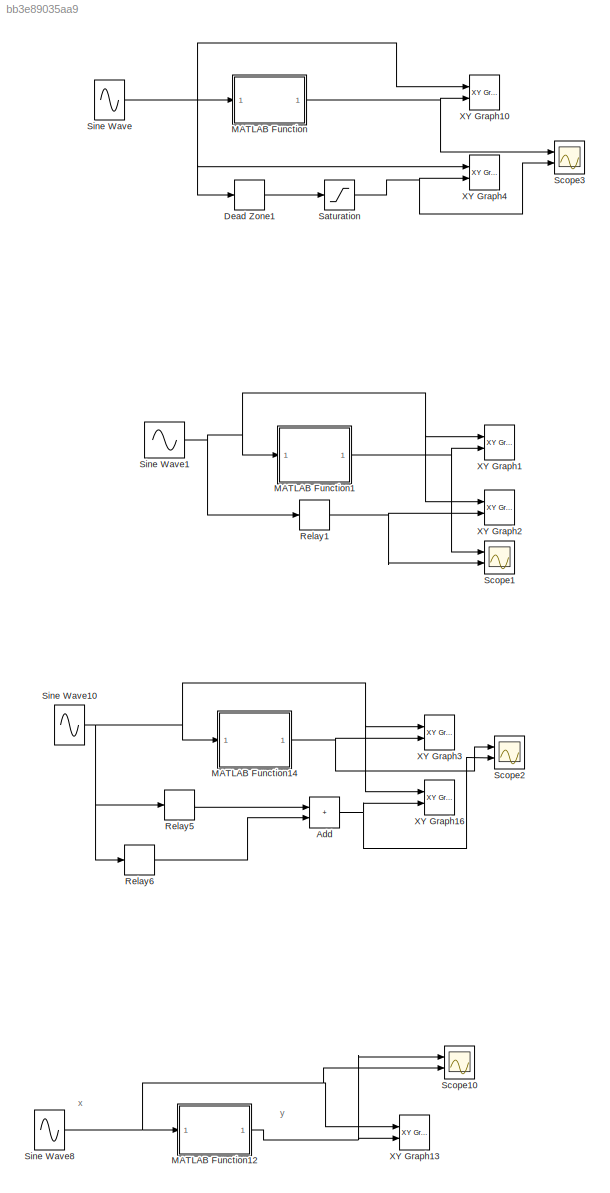
MODEL slx_bb3e89035aa9
KIND model
CONFIG AbsTol = auto
CONFIG EnableMultiTasking = off
CONFIG FixedStep = 0.001
CONFIG MaxStep = auto
CONFIG MinStep = auto
CONFIG RelTol = 1e-3
CONFIG SampleTimeConstraint = Unconstrained
CONFIG SolverName = FixedStepAuto
CONFIG StartTime = 0.0
CONFIG StopTime = 10.0
BLOCK [Sum] Add
  Commented = on
  IconShape = rectangular
  Ports = [2, 1]
BLOCK [DeadZone] Dead Zone1
  Commented = on
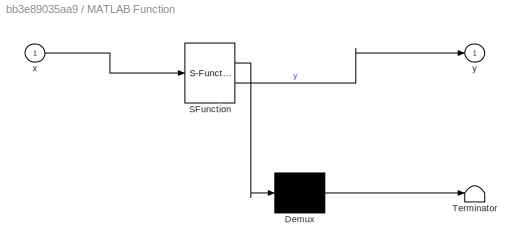
BLOCK [SubSystem] MATLAB Function
  Commented = on
  ErrorFcn = Stateflow.Translate.translate
  PermitHierarchicalResolution = ExplicitOnly
  Ports = [1, 1]
  RequestExecContextInheritance = off
  SFBlockType = MATLAB Function
  TreatAsAtomicUnit = on
BLOCK [Demux] MATLAB Function/ Demux 
  Outputs = 1
  Ports = [1, 1]
BLOCK [S-Function] MATLAB Function/ SFunction 
  EnableBusSupport = on
  FunctionName = sf_sfun
  PortCounts = [1 2]
  Ports = [1, 2]
  SFcnIsStateOwnerBlock = off
  SFunctionDeploymentMode = off
  Tag = Stateflow S-Function 3
BLOCK [Terminator] MATLAB Function/ Terminator 
BLOCK [Inport] MATLAB Function/x
BLOCK [Outport] MATLAB Function/y
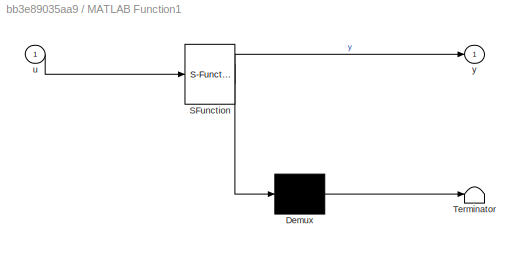
BLOCK [SubSystem] MATLAB Function1
  Commented = on
  ErrorFcn = Stateflow.Translate.translate
  PermitHierarchicalResolution = ExplicitOnly
  Ports = [1, 1]
  RequestExecContextInheritance = off
  SFBlockType = MATLAB Function
  TreatAsAtomicUnit = on
BLOCK [Demux] MATLAB Function1/ Demux 
  Outputs = 1
  Ports = [1, 1]
BLOCK [S-Function] MATLAB Function1/ SFunction 
  EnableBusSupport = on
  FunctionName = sf_sfun
  PortCounts = [1 2]
  Ports = [1, 2]
  SFcnIsStateOwnerBlock = off
  SFunctionDeploymentMode = off
  Tag = Stateflow S-Function 1
BLOCK [Terminator] MATLAB Function1/ Terminator 
BLOCK [Inport] MATLAB Function1/u
BLOCK [Outport] MATLAB Function1/y
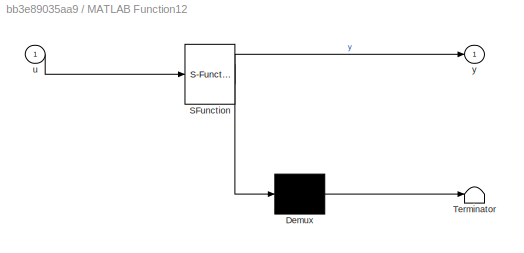
BLOCK [SubSystem] MATLAB Function12
  ErrorFcn = Stateflow.Translate.translate
  PermitHierarchicalResolution = ExplicitOnly
  Ports = [1, 1]
  RequestExecContextInheritance = off
  SFBlockType = MATLAB Function
  TreatAsAtomicUnit = on
BLOCK [Demux] MATLAB Function12/ Demux 
  Outputs = 1
  Ports = [1, 1]
BLOCK [S-Function] MATLAB Function12/ SFunction 
  EnableBusSupport = on
  FunctionName = sf_sfun
  PortCounts = [1 2]
  Ports = [1, 2]
  SFcnIsStateOwnerBlock = off
  SFunctionDeploymentMode = off
  Tag = Stateflow S-Function 13
BLOCK [Terminator] MATLAB Function12/ Terminator 
BLOCK [Inport] MATLAB Function12/u
BLOCK [Outport] MATLAB Function12/y
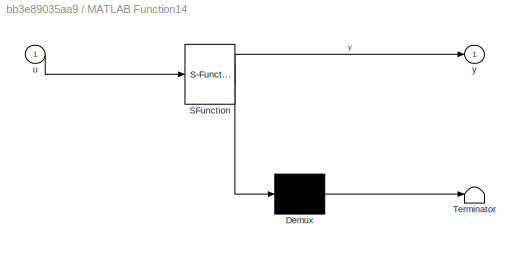
BLOCK [SubSystem] MATLAB Function14
  Commented = on
  ErrorFcn = Stateflow.Translate.translate
  PermitHierarchicalResolution = ExplicitOnly
  Ports = [1, 1]
  RequestExecContextInheritance = off
  SFBlockType = MATLAB Function
  TreatAsAtomicUnit = on
BLOCK [Demux] MATLAB Function14/ Demux 
  Outputs = 1
  Ports = [1, 1]
BLOCK [S-Function] MATLAB Function14/ SFunction 
  EnableBusSupport = on
  FunctionName = sf_sfun
  PortCounts = [1 2]
  Ports = [1, 2]
  SFcnIsStateOwnerBlock = off
  SFunctionDeploymentMode = off
  Tag = Stateflow S-Function 2
BLOCK [Terminator] MATLAB Function14/ Terminator 
BLOCK [Inport] MATLAB Function14/u
BLOCK [Outport] MATLAB Function14/y
BLOCK [Relay] Relay1
  Commented = on
  OffOutputValue = -2
  OffSwitchValue = -0.6
  OnOutputValue = 2
  OnSwitchValue = 0.6
BLOCK [Relay] Relay5
  Commented = on
  OffOutputValue = -3
  OffSwitchValue = 1
  OnOutputValue = 3
  OnSwitchValue = 2
BLOCK [Relay] Relay6
  Commented = on
  OffOutputValue = -3
  OffSwitchValue = -2
  OnOutputValue = 3
  OnSwitchValue = -1
BLOCK [Saturate] Saturation
  Commented = on
  LowerLimit = -1
  UpperLimit = 1
BLOCK [Scope] Scope1
  Commented = on
  Floating = off
  NumInputPorts = 2
  Ports = [2]
  ScopeSpecificationString = Simulink.scopes.TimeScopeBlockCfg('CurrentConfiguration', extmgr.ConfigurationSet(extmgr.Configuration('Core','General UI',true,'FigureColor',[1 1 1]),extmgr.Configuration('Core','Source UI',true),extmgr.Configuration('Sources','WiredSimulink',true,'DataLoggingVariableName','ScopeData1'),extmgr.Configuration('Visuals','Time Domain',true,'SerializedDisplays',{struct('MinYLimReal','-2.5','MaxYLimRea...<+2197ch>
BLOCK [Scope] Scope10
  Floating = off
  NumInputPorts = 2
  Ports = [2]
  ScopeSpecificationString = Simulink.scopes.TimeScopeBlockCfg('CurrentConfiguration', extmgr.ConfigurationSet(extmgr.Configuration('Core','General UI',true,'FigureColor',[1 1 1]),extmgr.Configuration('Core','Source UI',true),extmgr.Configuration('Sources','WiredSimulink',true,'DataLoggingVariableName','ScopeData1'),extmgr.Configuration('Visuals','Time Domain',true,'SerializedDisplays',{struct('MinYLimReal','-3.4375','MaxYLim...<+1547ch>
BLOCK [Scope] Scope2
  Commented = on
  Floating = off
  NumInputPorts = 2
  Ports = [2]
  ScopeSpecificationString = Simulink.scopes.TimeScopeBlockCfg('CurrentConfiguration', extmgr.ConfigurationSet(extmgr.Configuration('Core','General UI',true,'FigureColor',[1 1 1]),extmgr.Configuration('Core','Source UI',true),extmgr.Configuration('Sources','WiredSimulink',true,'DataLoggingVariableName','ScopeData2'),extmgr.Configuration('Visuals','Time Domain',true,'SerializedDisplays',{struct('MinYLimReal','-7.5','MaxYLimRea...<+2222ch>
BLOCK [Scope] Scope3
  Commented = on
  Floating = off
  NumInputPorts = 2
  Ports = [2]
  ScopeSpecificationString = Simulink.scopes.TimeScopeBlockCfg('CurrentConfiguration', extmgr.ConfigurationSet(extmgr.Configuration('Core','General UI',true,'FigureColor',[1 1 1]),extmgr.Configuration('Core','Source UI',true),extmgr.Configuration('Sources','WiredSimulink',true,'DataLoggingVariableName','ScopeData1'),extmgr.Configuration('Visuals','Time Domain',true,'SerializedDisplays',{struct('MinYLimReal','-1.25','MaxYLimRe...<+1663ch>
BLOCK [Sin] Sine Wave
  Amplitude = 2
  Commented = on
  Ports = [0, 1]
  SampleTime = 0
BLOCK [Sin] Sine Wave1
  Commented = on
  Ports = [0, 1]
  SampleTime = 0
BLOCK [Sin] Sine Wave10
  Amplitude = 10
  Commented = on
  Ports = [0, 1]
  SampleTime = 0
BLOCK [Sin] Sine Wave8
  Amplitude = 2.5
  Ports = [0, 1]
  SampleTime = 0
BLOCK [Reference] XY Graph1  REF=simulink/Sinks/XY Graph
  Commented = on
  Ports = [2]
  SourceBlock = simulink/Sinks/XY Graph
  SourceProductBaseCode = SL
  SourceType = XY scope.
BLOCK [Reference] XY Graph10  REF=simulink/Sinks/XY Graph
  Commented = on
  Ports = [2]
  SourceBlock = simulink/Sinks/XY Graph
  SourceProductBaseCode = SL
  SourceType = XY scope.
BLOCK [Reference] XY Graph13  REF=simulink/Sinks/XY Graph
  Ports = [2]
  SourceBlock = simulink/Sinks/XY Graph
  SourceProductBaseCode = SL
  SourceType = XY scope.
BLOCK [Reference] XY Graph16  REF=simulink/Sinks/XY Graph
  Commented = on
  Ports = [2]
  SourceBlock = simulink/Sinks/XY Graph
  SourceProductBaseCode = SL
  SourceType = XY scope.
BLOCK [Reference] XY Graph2  REF=simulink/Sinks/XY Graph
  Commented = on
  Ports = [2]
  SourceBlock = simulink/Sinks/XY Graph
  SourceProductBaseCode = SL
  SourceType = XY scope.
BLOCK [Reference] XY Graph3  REF=simulink/Sinks/XY Graph
  Commented = on
  Ports = [2]
  SourceBlock = simulink/Sinks/XY Graph
  SourceProductBaseCode = SL
  SourceType = XY scope.
BLOCK [Reference] XY Graph4  REF=simulink/Sinks/XY Graph
  Commented = on
  Ports = [2]
  SourceBlock = simulink/Sinks/XY Graph
  SourceProductBaseCode = SL
  SourceType = XY scope.
ANNOTATION (root): x
ANNOTATION (root): y
NET Add:1 -> Scope2:2, XY Graph16:2
LINE Dead Zone1:1 -> Saturation:1
NET MATLAB Function12:1 -> Scope10:1, XY Graph13:2
NET MATLAB Function14:1 -> Scope2:1, XY Graph3:2
NET MATLAB Function1:1 -> Scope1:1, XY Graph1:2
NET MATLAB Function:1 -> Scope3:1, XY Graph10:2
NET Relay1:1 -> Scope1:2, XY Graph2:2
LINE Relay5:1 -> Add:1
LINE Relay6:1 -> Add:2
NET Saturation:1 -> Scope3:2, XY Graph4:2
NET Sine Wave10:1 -> MATLAB Function14:1, Relay5:1, Relay6:1, XY Graph16:1, XY Graph3:1
NET Sine Wave1:1 -> MATLAB Function1:1, Relay1:1, XY Graph1:1, XY Graph2:1
NET Sine Wave8:1 -> MATLAB Function12:1, Scope10:2, XY Graph13:1
NET Sine Wave:1 -> Dead Zone1:1, MATLAB Function:1, XY Graph10:1, XY Graph4:1
note: NET lines group one-source signal fan-out (src -> all destinations, sorted); 1:1 wires keep LINE
CHART MATLAB Function1 states=1 transitions=1
  STATE_LABEL 'eML_blk_kernel()'
  STATE_LABEL 'SCRIPT:\nfunction y = fcn(u)\npersistent u2\nc=2;\nb=0.6;\ny=-c;\n\nif isempty(u2)\nu2 = 0;\nend\n\nif u>u2\n    if u>=b\n        y=c;\n    end\n    if u<b\n        y=-c;\n    end\nu2 = u;\nend\nif u<u2\n    if u>-b\n        y=c;\n    end\n    if u<=-b\n        y=-c;\n    end\nu2 = u;\nend\n\n'
CHART MATLAB Function14 states=1 transitions=1
  STATE_LABEL 'eML_blk_kernel()'
  STATE_LABEL 'SCRIPT:\nfunction y = fcn(u)\npersistent u2\nC=6;\nb1=1;\nb2 = 2;\ny=-C;\n\nif isempty(u2)\nu2 = 0.1;\nend\n\nif u>u2\n    if u>=b2\n        y=C;\n    end\n    if (u>=-b1)&&(u<=b2)\n        y=0;\n    end\n    if u<=-b1\n        y=-C;\n    end\nu2 = u;\nend\nif u<u2\n    if u>=b1\n        y=C;\n    end\n    if (u>=-b2)&&(u<=b1)\n        y=0;\n    end\n    if u<=-b2\n        y=-C;\n    end\nu2 = u;\nend\n\n'
CHART MATLAB Function states=1 transitions=1
  STATE_LABEL 'eML_blk_kernel()'
  STATE_LABEL 'SCRIPT:\nfunction y = fcn(x)\na=0.5;\nM=1;\nC=1.5;\nk=M/(C-a);\nif abs(x)<a\n    y=0;\nelseif (a<x)&&(x<C)\n    y=k*(x-a);\nelseif (a<-x)&&(-x<C)\n    y=k*(x+a);\nelseif x>C\n    y=M;\nelse\n    y=-M;\nend\n'
CHART MATLAB Function12 states=1 transitions=1
  STATE_LABEL 'eML_blk_kernel()'
  STATE_LABEL 'SCRIPT:\nfunction y = fcn(u)\nc=4;\nb=2;\nk = c/b;\ny=0;\n\nif u<=0\n    y=-k*u;\nend\nif u>0\n    y=k*u;\nend\n\nif u>=b\n    y=-k*u+2*c;\nend\nend\n\n'
CHART  states=0 transitions=0
CHART  states=0 transitions=0
CHART  states=0 transitions=0
CHART  states=0 transitions=0
